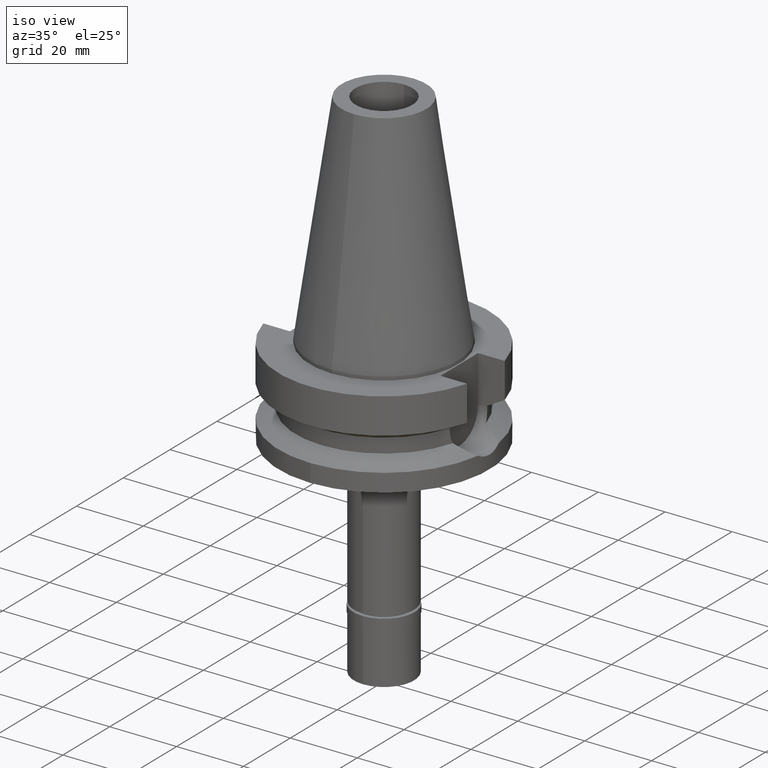
[diagram: clean part render]
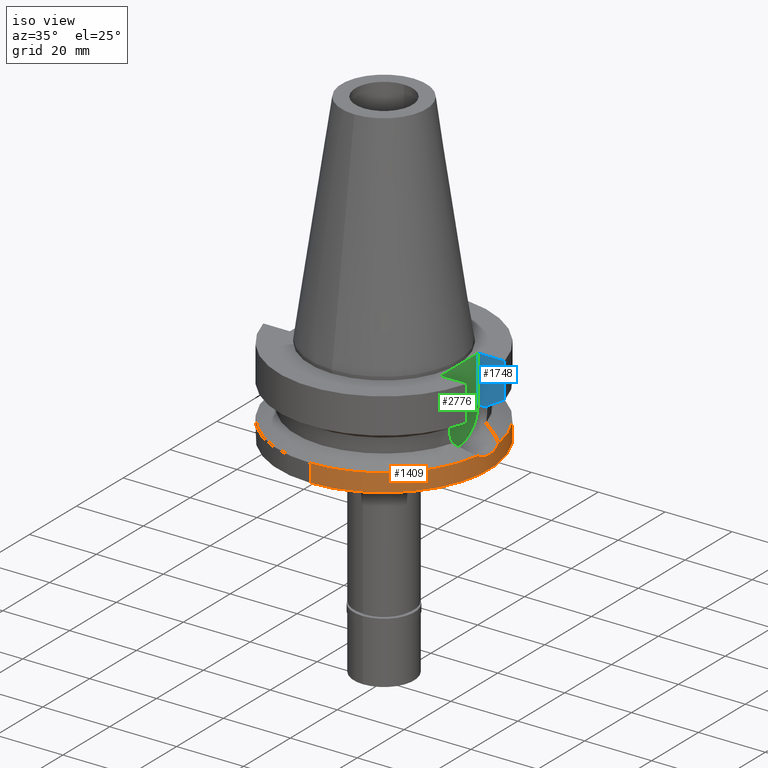
[diagram: same view with three faces highlighted in distinct colors, each labeled with its STEP entity id]
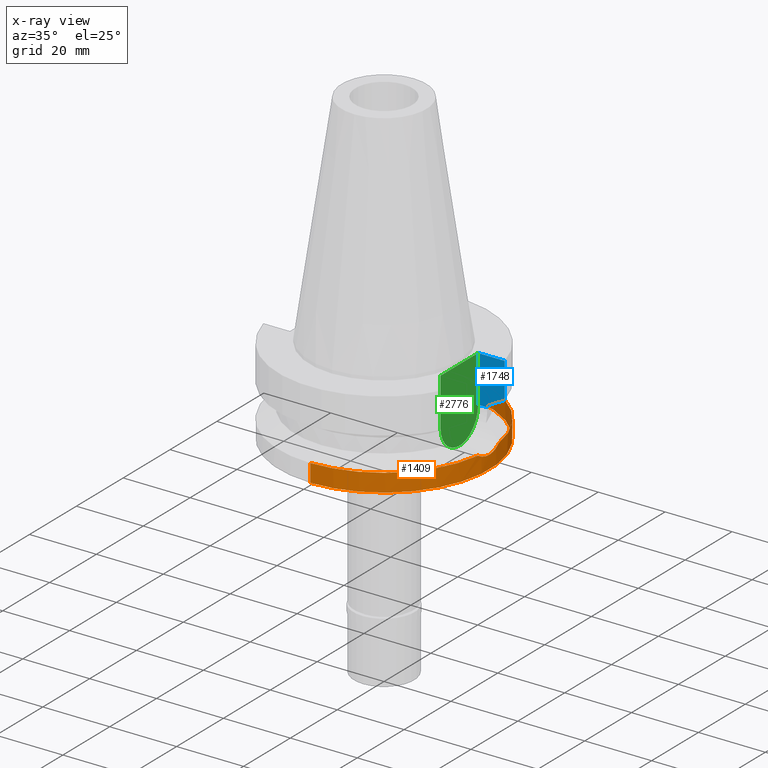
[diagram: x-ray of the same camera — body ghosted, the three highlighted faces saturated]
A machine part, iso view with three faces highlighted in distinct colors.
The next image is the same camera in x-ray (body ghosted, the three faces saturated) — at least one of them is partly hidden behind the body in this view.
Their STEP definitions:

[orange] entity #1409 — the highlighted cylindrical surface (partial cylindrical patch) has radius 31.5 mm, axis along (0, 0, -1).
#57 = B_SPLINE_CURVE_WITH_KNOTS ( 'NONE', 3,
 ( #2349, #2363, #2587, #2115, #1674, #1210, #2766, #1690, #2320, #565, #1253, #761, #2573, #2100, #2137 ),
 .UNSPECIFIED., .F., .F.,
 ( 4, 2, 2, 1, 1, 1, 2, 2, 4 ),
 ( 0.0000000000000000000, 0.2500000000000000000, 0.3750000000000000000, 0.4375000000000000000, 0.4687500000000003886, 0.4843750000000007216, 0.4921875000000005551, 0.5000000000000004441, 1.000000000000000000 ),
 .UNSPECIFIED. ) ;
#60 = CARTESIAN_POINT ( 'NONE',  ( 31.35450628987310751, -3.025525278708723231, -22.41217090929091071 ) ) ;
#74 = AXIS2_PLACEMENT_3D ( 'NONE', #1360, #1984, #640 ) ;
#92 = CARTESIAN_POINT ( 'NONE',  ( 0.0000000000000000000, 31.50000000000000000, -27.00000000000000000 ) ) ;
#101 = CARTESIAN_POINT ( 'NONE',  ( 0.0000000000000000000, 31.50000000000000000, -21.63449434733000132 ) ) ;
#102 = CARTESIAN_POINT ( 'NONE',  ( 31.23205536467117582, -4.116739457721532602, -21.88197025569194309 ) ) ;
#118 = DIRECTION ( 'NONE',  ( 0.0000000000000000000, 1.099151708819000049E-13, -1.000000000000000000 ) ) ;
#184 = CARTESIAN_POINT ( 'NONE',  ( 0.0000000000000000000, 0.0000000000000000000, -21.63449434733000132 ) ) ;
#206 = VERTEX_POINT ( 'NONE', #286 ) ;
#256 = VERTEX_POINT ( 'NONE', #844 ) ;
#286 = CARTESIAN_POINT ( 'NONE',  ( 31.17899877608999759, 4.485536235554000051, -21.63449434733000132 ) ) ;
#388 = CARTESIAN_POINT ( 'NONE',  ( 0.0000000000000000000, -31.50000000000000000, -21.63449434733000132 ) ) ;
#449 = VECTOR ( 'NONE', #2827, 1000.000000000000000 ) ;
#452 = ORIENTED_EDGE ( 'NONE', *, *, #737, .T. ) ;
#473 = VERTEX_POINT ( 'NONE', #777 ) ;
#490 = VERTEX_POINT ( 'NONE', #1199 ) ;
#522 = EDGE_CURVE ( 'NONE', #473, #206, #57, .T. ) ;
#554 = DIRECTION ( 'NONE',  ( 0.0000000000000000000, 0.0000000000000000000, -1.000000000000000000 ) ) ;
#565 = CARTESIAN_POINT ( 'NONE',  ( 31.41697434343423367, 2.283991918625759343, -22.66919955626062588 ) ) ;
#640 = DIRECTION ( 'NONE',  ( 0.0000000000000000000, -1.000000000000000000, 0.0000000000000000000 ) ) ;
#662 = DIRECTION ( 'NONE',  ( 0.0000000000000000000, 0.0000000000000000000, -1.000000000000000000 ) ) ;
#688 = ORIENTED_EDGE ( 'NONE', *, *, #2074, .F. ) ;
#694 = CARTESIAN_POINT ( 'NONE',  ( 0.0000000000000000000, 0.0000000000000000000, -21.63449434733000132 ) ) ;
#737 = EDGE_CURVE ( 'NONE', #1443, #490, #2848, .T. ) ;
#761 = CARTESIAN_POINT ( 'NONE',  ( 31.41418495480592554, 2.322053851905228949, -22.65783286940178343 ) ) ;
#777 = CARTESIAN_POINT ( 'NONE',  ( 31.50000030214000191, 8.342679948659999489E-14, -23.00000138097999880 ) ) ;
#783 = B_SPLINE_CURVE_WITH_KNOTS ( 'NONE', 3,
 ( #2110, #102, #2066, #1901, #60, #953, #1849, #1630, #2800, #788, #1080, #846, #2196, #1956, #1744 ),
 .UNSPECIFIED., .F., .F.,
 ( 4, 2, 2, 1, 1, 1, 2, 2, 4 ),
 ( 0.0000000000000000000, 0.2499999999999891198, 0.3749999999999837907, 0.4374999999999805711, 0.4687499999999788503, 0.4843749999999781286, 0.4921874999999779621, 0.4999999999999777955, 1.000000000000000000 ),
 .UNSPECIFIED. ) ;
#788 = CARTESIAN_POINT ( 'NONE',  ( 31.41024033734879239, -2.374799497859105379, -22.64174557502347795 ) ) ;
#795 = CYLINDRICAL_SURFACE ( 'NONE', #1398, 31.50000000000000000 ) ;
#829 = CIRCLE ( 'NONE', #1904, 31.50000000000000000 ) ;
#844 = CARTESIAN_POINT ( 'NONE',  ( 0.0000000000000000000, 31.50000000000000000, -21.63449434733000132 ) ) ;
#846 = CARTESIAN_POINT ( 'NONE',  ( 31.41250754197807993, -2.344647989644030872, -22.65099259441520019 ) ) ;
#879 = CIRCLE ( 'NONE', #74, 31.50000000000000000 ) ;
#902 = DIRECTION ( 'NONE',  ( 0.0000000000000000000, 1.000000000000000000, 0.0000000000000000000 ) ) ;
#948 = ORIENTED_EDGE ( 'NONE', *, *, #522, .F. ) ;
#953 = CARTESIAN_POINT ( 'NONE',  ( 31.37856208536258507, -2.761959680082898050, -22.51193779387860161 ) ) ;
#964 = CARTESIAN_POINT ( 'NONE',  ( 0.0000000000000000000, 2.117904174444999906E-14, 72.93999999999999773 ) ) ;
#1080 = CARTESIAN_POINT ( 'NONE',  ( 31.41183517848471851, -2.353627141636739584, -22.64825057555778542 ) ) ;
#1092 = EDGE_CURVE ( 'NONE', #2299, #1443, #1523, .T. ) ;
#1195 = DIRECTION ( 'NONE',  ( 0.0000000000000000000, -1.000000000000000000, 0.0000000000000000000 ) ) ;
#1199 = CARTESIAN_POINT ( 'NONE',  ( 0.0000000000000000000, -31.50000000000000000, -27.00000000000000000 ) ) ;
#1210 = CARTESIAN_POINT ( 'NONE',  ( 31.44587591856813091, 1.845286407788024441, -22.78628960812945792 ) ) ;
#1253 = CARTESIAN_POINT ( 'NONE',  ( 31.41519838709828250, 2.308305299118597276, -22.66196392106336077 ) ) ;
#1337 = VERTEX_POINT ( 'NONE', #92 ) ;
#1360 = CARTESIAN_POINT ( 'NONE',  ( 0.0000000000000000000, 2.117904174444999906E-14, -27.00000000000000000 ) ) ;
#1377 = ORIENTED_EDGE ( 'NONE', *, *, #1464, .F. ) ;
#1398 = AXIS2_PLACEMENT_3D ( 'NONE', #964, #554, #1195 ) ;
#1409 = ADVANCED_FACE ( 'NONE', ( #1671 ), #795, .T. ) ;
#1443 = VERTEX_POINT ( 'NONE', #2344 ) ;
#1464 = EDGE_CURVE ( 'NONE', #256, #1337, #1882, .T. ) ;
#1520 = AXIS2_PLACEMENT_3D ( 'NONE', #694, #2704, #2259 ) ;
#1523 = CIRCLE ( 'NONE', #1520, 31.50000000000001421 ) ;
#1535 = CARTESIAN_POINT ( 'NONE',  ( 31.17899877608999759, -4.485536235554000051, -21.63449434733000132 ) ) ;
#1630 = CARTESIAN_POINT ( 'NONE',  ( 31.40205439728355330, -2.481109188603897842, -22.60833575741184731 ) ) ;
#1671 = FACE_OUTER_BOUND ( 'NONE', #1917, .T. ) ;
#1674 = CARTESIAN_POINT ( 'NONE',  ( 31.46211323363968404, 1.552195910606970042, -22.85147168900039460 ) ) ;
#1690 = CARTESIAN_POINT ( 'NONE',  ( 31.42563565429489714, 2.162334765057353003, -22.70443684358944125 ) ) ;
#1744 = CARTESIAN_POINT ( 'NONE',  ( 31.50000030214000191, 8.342679948659999489E-14, -23.00000138097999880 ) ) ;
#1833 = EDGE_CURVE ( 'NONE', #256, #206, #829, .T. ) ;
#1849 = CARTESIAN_POINT ( 'NONE',  ( 31.38993428952623788, -2.631303512982562598, -22.55875788718121200 ) ) ;
#1882 = LINE ( 'NONE', #101, #2421 ) ;
#1901 = CARTESIAN_POINT ( 'NONE',  ( 31.33672057666384703, -3.204251253422860213, -22.33748834283154494 ) ) ;
#1904 = AXIS2_PLACEMENT_3D ( 'NONE', #184, #662, #902 ) ;
#1917 = EDGE_LOOP ( 'NONE', ( #2209, #452, #2213, #1377, #2389, #948, #688 ) ) ;
#1956 = CARTESIAN_POINT ( 'NONE',  ( 31.50000030214000901, -0.7652149803048207133, -23.00000000000001066 ) ) ;
#1984 = DIRECTION ( 'NONE',  ( 0.0000000000000000000, 0.0000000000000000000, 1.000000000000000000 ) ) ;
#2066 = CARTESIAN_POINT ( 'NONE',  ( 31.27811788838728191, -3.746649694534217812, -22.08610233310749393 ) ) ;
#2074 = EDGE_CURVE ( 'NONE', #2299, #473, #783, .T. ) ;
#2100 = CARTESIAN_POINT ( 'NONE',  ( 31.28511246926718314, 3.747939093157139911, -22.12944857087667927 ) ) ;
#2110 = CARTESIAN_POINT ( 'NONE',  ( 31.17899877608999759, -4.485536235554000051, -21.63449434733000132 ) ) ;
#2115 = CARTESIAN_POINT ( 'NONE',  ( 31.47113396423499054, 1.356627086730529896, -22.88731413895099820 ) ) ;
#2137 = CARTESIAN_POINT ( 'NONE',  ( 31.17899877608999759, 4.485536235554000051, -21.63449434733000132 ) ) ;
#2196 = CARTESIAN_POINT ( 'NONE',  ( 31.47113671115873856, -1.554941093167750754, -22.89006709253960636 ) ) ;
#2209 = ORIENTED_EDGE ( 'NONE', *, *, #1092, .T. ) ;
#2213 = ORIENTED_EDGE ( 'NONE', *, *, #2268, .T. ) ;
#2259 = DIRECTION ( 'NONE',  ( 0.9898094849552905306, -0.1423979757318985240, 0.0000000000000000000 ) ) ;
#2268 = EDGE_CURVE ( 'NONE', #490, #1337, #879, .T. ) ;
#2299 = VERTEX_POINT ( 'NONE', #1535 ) ;
#2320 = CARTESIAN_POINT ( 'NONE',  ( 31.41961713560082714, 2.247512791054763426, -22.67996187726737389 ) ) ;
#2344 = CARTESIAN_POINT ( 'NONE',  ( 0.0000000000000000000, -31.50000000000000000, -21.63449434733000132 ) ) ;
#2349 = CARTESIAN_POINT ( 'NONE',  ( 31.50000030214000191, 8.342679948659999489E-14, -23.00000138097999880 ) ) ;
#2363 = CARTESIAN_POINT ( 'NONE',  ( 31.50000030213999480, 0.3826056556068273551, -22.99999999999998934 ) ) ;
#2389 = ORIENTED_EDGE ( 'NONE', *, *, #1833, .T. ) ;
#2421 = VECTOR ( 'NONE', #118, 1000.000000000000000 ) ;
#2573 = CARTESIAN_POINT ( 'NONE',  ( 31.36324664004550655, 3.008168614207373803, -22.45010890218881272 ) ) ;
#2587 = CARTESIAN_POINT ( 'NONE',  ( 31.49278371766373752, 0.7711800347061579242, -22.97267739133515008 ) ) ;
#2704 = DIRECTION ( 'NONE',  ( 0.0000000000000000000, 0.0000000000000000000, -1.000000000000000000 ) ) ;
#2766 = CARTESIAN_POINT ( 'NONE',  ( 31.43708070623769402, 1.991764995408694228, -22.75084497586246712 ) ) ;
#2800 = CARTESIAN_POINT ( 'NONE',  ( 31.40782758522046691, -2.406601728435881160, -22.63190292602388354 ) ) ;
#2827 = DIRECTION ( 'NONE',  ( 0.0000000000000000000, -1.105773104655000034E-13, -1.000000000000000000 ) ) ;
#2848 = LINE ( 'NONE', #388, #449 ) ;

[blue] entity #1748 — the highlighted planar face has unit normal (0, 1, 0).
#139 = ORIENTED_EDGE ( 'NONE', *, *, #2678, .T. ) ;
#141 = CARTESIAN_POINT ( 'NONE',  ( 22.50000000000000000, 8.050000000000000711, -1.000000000000000000 ) ) ;
#156 = LINE ( 'NONE', #141, #2089 ) ;
#160 = CARTESIAN_POINT ( 'NONE',  ( 30.45402291393999761, 8.049999276842999762, -11.56551216599000043 ) ) ;
#180 = VERTEX_POINT ( 'NONE', #278 ) ;
#187 = VERTEX_POINT ( 'NONE', #523 ) ;
#226 = ORIENTED_EDGE ( 'NONE', *, *, #2588, .F. ) ;
#227 = LINE ( 'NONE', #1998, #1820 ) ;
#249 = CARTESIAN_POINT ( 'NONE',  ( 30.45402291393999761, 8.049999276842999762, -11.56551216599000043 ) ) ;
#278 = CARTESIAN_POINT ( 'NONE',  ( 22.50000000000000000, 8.050000000000000711, -14.94999999999999929 ) ) ;
#284 = EDGE_CURVE ( 'NONE', #180, #187, #2846, .T. ) ;
#341 = DIRECTION ( 'NONE',  ( -1.809220493230990463E-08, 6.844501263554971057E-08, 0.9999999999999974465 ) ) ;
#373 = ORIENTED_EDGE ( 'NONE', *, *, #2402, .F. ) ;
#523 = CARTESIAN_POINT ( 'NONE',  ( 25.24772266958000344, 8.050000000000000711, -14.94999999999999929 ) ) ;
#539 = CARTESIAN_POINT ( 'NONE',  ( 26.83754614138751649, 8.049990817311602598, -13.57774889203567881 ) ) ;
#606 = VERTEX_POINT ( 'NONE', #2382 ) ;
#643 = ORIENTED_EDGE ( 'NONE', *, *, #1018, .T. ) ;
#682 = DIRECTION ( 'NONE',  ( -0.0000000000000000000, 1.000000000000000000, 0.0000000000000000000 ) ) ;
#756 = CARTESIAN_POINT ( 'NONE',  ( 28.57292327237102114, 8.049998554625556579, -12.61549606574215865 ) ) ;
#806 = VERTEX_POINT ( 'NONE', #2671 ) ;
#836 = DIRECTION ( 'NONE',  ( 2.938042504307079613E-06, -9.214773774765258062E-06, 0.9999999999532278583 ) ) ;
#1018 = EDGE_CURVE ( 'NONE', #187, #606, #1283, .T. ) ;
#1151 = CARTESIAN_POINT ( 'NONE',  ( 22.50000000000000000, 8.050000000000000711, -1.000000000000000000 ) ) ;
#1192 = CARTESIAN_POINT ( 'NONE',  ( 30.45402291393999761, 8.049999276842999762, -11.56551216599000043 ) ) ;
#1207 = VECTOR ( 'NONE', #341, 1000.000000000000114 ) ;
#1283 = LINE ( 'NONE', #2852, #1851 ) ;
#1354 = VECTOR ( 'NONE', #2825, 1000.000000000000000 ) ;
#1386 = ORIENTED_EDGE ( 'NONE', *, *, #284, .T. ) ;
#1436 = AXIS2_PLACEMENT_3D ( 'NONE', #1527, #682, #1951 ) ;
#1527 = CARTESIAN_POINT ( 'NONE',  ( 22.50000000000000000, 8.050000000000000711, -14.94999999999999929 ) ) ;
#1748 = ADVANCED_FACE ( 'NONE', ( #1799 ), #2475, .F. ) ;
#1799 = FACE_OUTER_BOUND ( 'NONE', #2053, .T. ) ;
#1820 = VECTOR ( 'NONE', #2889, 1000.000000000000000 ) ;
#1851 = VECTOR ( 'NONE', #836, 1000.000000000000227 ) ;
#1894 = DIRECTION ( 'NONE',  ( 1.000000000000000000, -3.506251283225999947E-14, 0.0000000000000000000 ) ) ;
#1951 = DIRECTION ( 'NONE',  ( 1.000000000000000000, 0.0000000000000000000, 0.0000000000000000000 ) ) ;
#1998 = CARTESIAN_POINT ( 'NONE',  ( 22.50000000000000000, 8.050000000000000711, -1.000000000000000000 ) ) ;
#2029 = ORIENTED_EDGE ( 'NONE', *, *, #2162, .T. ) ;
#2053 = EDGE_LOOP ( 'NONE', ( #373, #2029, #226, #139, #1386, #643 ) ) ;
#2089 = VECTOR ( 'NONE', #1894, 1000.000000000000000 ) ;
#2153 = B_SPLINE_CURVE_WITH_KNOTS ( 'NONE', 3,
 ( #1192, #756, #539, #2762 ),
 .UNSPECIFIED., .F., .F.,
 ( 4, 4 ),
 ( 0.0000000000000000000, 1.000000000000000000 ),
 .UNSPECIFIED. ) ;
#2162 = EDGE_CURVE ( 'NONE', #2212, #806, #2638, .T. ) ;
#2212 = VERTEX_POINT ( 'NONE', #249 ) ;
#2382 = CARTESIAN_POINT ( 'NONE',  ( 25.24772413187000097, 8.049995413733999072, -14.45229204367000087 ) ) ;
#2402 = EDGE_CURVE ( 'NONE', #2212, #606, #2153, .T. ) ;
#2411 = CARTESIAN_POINT ( 'NONE',  ( 22.50000000000000000, 8.050000000000000711, -14.94999999999999929 ) ) ;
#2475 = PLANE ( 'NONE',  #1436 ) ;
#2588 = EDGE_CURVE ( 'NONE', #2803, #806, #156, .T. ) ;
#2638 = LINE ( 'NONE', #160, #1207 ) ;
#2671 = CARTESIAN_POINT ( 'NONE',  ( 30.45402272279000044, 8.050000000000000711, -1.000000000000000000 ) ) ;
#2678 = EDGE_CURVE ( 'NONE', #2803, #180, #227, .T. ) ;
#2762 = CARTESIAN_POINT ( 'NONE',  ( 25.24772413187000097, 8.049995413733999072, -14.45229204367000087 ) ) ;
#2803 = VERTEX_POINT ( 'NONE', #1151 ) ;
#2825 = DIRECTION ( 'NONE',  ( 1.000000000000000000, -1.551559937893000172E-14, 0.0000000000000000000 ) ) ;
#2846 = LINE ( 'NONE', #2411, #1354 ) ;
#2852 = CARTESIAN_POINT ( 'NONE',  ( 25.24772266958000344, 8.050000000000000711, -14.94999999999999929 ) ) ;
#2889 = DIRECTION ( 'NONE',  ( 0.0000000000000000000, 0.0000000000000000000, -1.000000000000000000 ) ) ;

[green] entity #2776 — the highlighted planar face has unit normal (1, 0, 0).
#19 = CARTESIAN_POINT ( 'NONE',  ( 22.50000000000000000, 0.0000000000000000000, -14.94999999999999929 ) ) ;
#66 = EDGE_CURVE ( 'NONE', #334, #1999, #1193, .T. ) ;
#180 = VERTEX_POINT ( 'NONE', #278 ) ;
#205 = PLANE ( 'NONE',  #1842 ) ;
#227 = LINE ( 'NONE', #1998, #1820 ) ;
#278 = CARTESIAN_POINT ( 'NONE',  ( 22.50000000000000000, 8.050000000000000711, -14.94999999999999929 ) ) ;
#334 = VERTEX_POINT ( 'NONE', #745 ) ;
#451 = DIRECTION ( 'NONE',  ( 0.0000000000000000000, 1.000000000000000000, 0.0000000000000000000 ) ) ;
#529 = ORIENTED_EDGE ( 'NONE', *, *, #66, .F. ) ;
#626 = ORIENTED_EDGE ( 'NONE', *, *, #878, .T. ) ;
#634 = AXIS2_PLACEMENT_3D ( 'NONE', #19, #1380, #1159 ) ;
#745 = CARTESIAN_POINT ( 'NONE',  ( 22.50000000000000000, -8.050000000000000711, -14.94999999999999929 ) ) ;
#878 = EDGE_CURVE ( 'NONE', #2803, #1999, #2435, .T. ) ;
#1022 = ORIENTED_EDGE ( 'NONE', *, *, #2678, .F. ) ;
#1134 = FACE_OUTER_BOUND ( 'NONE', #2604, .T. ) ;
#1151 = CARTESIAN_POINT ( 'NONE',  ( 22.50000000000000000, 8.050000000000000711, -1.000000000000000000 ) ) ;
#1159 = DIRECTION ( 'NONE',  ( 0.0000000000000000000, 0.0000000000000000000, -1.000000000000000000 ) ) ;
#1193 = LINE ( 'NONE', #1204, #2287 ) ;
#1204 = CARTESIAN_POINT ( 'NONE',  ( 22.50000000000000000, -8.050000000000000711, -14.94999999999999929 ) ) ;
#1276 = EDGE_CURVE ( 'NONE', #180, #334, #2126, .T. ) ;
#1380 = DIRECTION ( 'NONE',  ( -1.000000000000000000, 0.0000000000000000000, 0.0000000000000000000 ) ) ;
#1560 = CARTESIAN_POINT ( 'NONE',  ( 22.50000000000000000, 0.0000000000000000000, 0.0000000000000000000 ) ) ;
#1811 = CARTESIAN_POINT ( 'NONE',  ( 22.50000000000000000, -8.050000000000000711, -1.000000000000000000 ) ) ;
#1820 = VECTOR ( 'NONE', #2889, 1000.000000000000000 ) ;
#1842 = AXIS2_PLACEMENT_3D ( 'NONE', #1560, #2462, #451 ) ;
#1998 = CARTESIAN_POINT ( 'NONE',  ( 22.50000000000000000, 8.050000000000000711, -1.000000000000000000 ) ) ;
#1999 = VERTEX_POINT ( 'NONE', #1811 ) ;
#2126 = CIRCLE ( 'NONE', #634, 8.050000000000000711 ) ;
#2230 = VECTOR ( 'NONE', #2641, 1000.000000000000000 ) ;
#2287 = VECTOR ( 'NONE', #2342, 1000.000000000000000 ) ;
#2342 = DIRECTION ( 'NONE',  ( 0.0000000000000000000, 0.0000000000000000000, 1.000000000000000000 ) ) ;
#2398 = ORIENTED_EDGE ( 'NONE', *, *, #1276, .F. ) ;
#2435 = LINE ( 'NONE', #2658, #2230 ) ;
#2462 = DIRECTION ( 'NONE',  ( 1.000000000000000000, 0.0000000000000000000, 0.0000000000000000000 ) ) ;
#2604 = EDGE_LOOP ( 'NONE', ( #529, #2398, #1022, #626 ) ) ;
#2641 = DIRECTION ( 'NONE',  ( 0.0000000000000000000, -1.000000000000000000, 0.0000000000000000000 ) ) ;
#2658 = CARTESIAN_POINT ( 'NONE',  ( 22.50000000000000000, 8.050000000000000711, -1.000000000000000000 ) ) ;
#2678 = EDGE_CURVE ( 'NONE', #2803, #180, #227, .T. ) ;
#2776 = ADVANCED_FACE ( 'NONE', ( #1134 ), #205, .T. ) ;
#2803 = VERTEX_POINT ( 'NONE', #1151 ) ;
#2889 = DIRECTION ( 'NONE',  ( 0.0000000000000000000, 0.0000000000000000000, -1.000000000000000000 ) ) ;